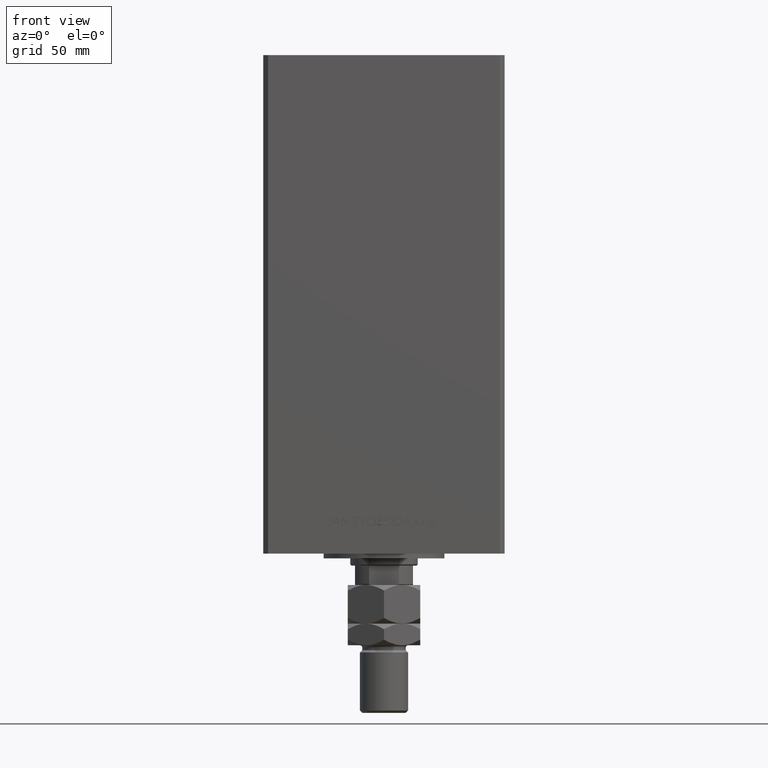
[diagram: clean part render]
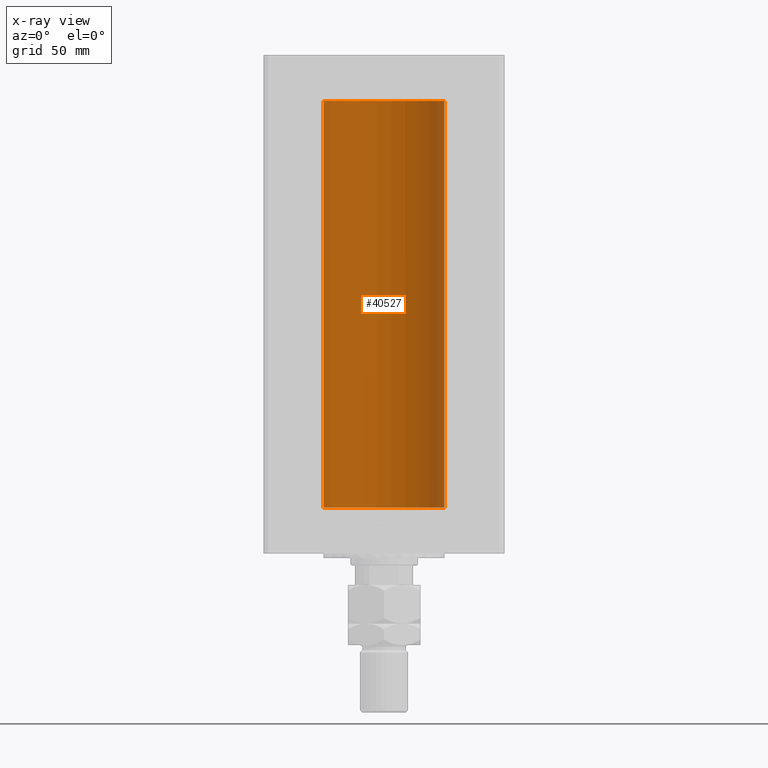
[diagram: x-ray — body ghosted, one internal face saturated and labeled with its STEP entity id]
A machine part, front view, then the same camera in x-ray: the body is ghosted and one INTERNAL B-rep face — a face not visible from any outside direction — is saturated and labeled: STEP entity #40527.
In plain terms, the highlighted cylindrical surface (partial cylindrical patch) has radius 25 mm, axis along (-0, -0, -1).
Its self-contained STEP definition (entity closure, byte-faithful):
#436 = CYLINDRICAL_SURFACE ( 'NONE', #23353, 25.00000000000000000 ) ;
#1452 = CARTESIAN_POINT ( 'NONE',  ( 0.000000000000000000, 0.000000000000000000, 168.5000000000000000 ) ) ;
#1500 = CIRCLE ( 'NONE', #26910, 25.00000000000000000 ) ;
#3869 = DIRECTION ( 'NONE',  ( 1.000000000000000000, 0.000000000000000000, 0.000000000000000000 ) ) ;
#4154 = EDGE_CURVE ( 'NONE', #15265, #5656, #1500, .T. ) ;
#5656 = VERTEX_POINT ( 'NONE', #8709 ) ;
#8709 = CARTESIAN_POINT ( 'NONE',  ( -25.00000000000000000, 0.000000000000000000, 168.5000000000000000 ) ) ;
#12130 = LINE ( 'NONE', #24487, #49358 ) ;
#12344 = LINE ( 'NONE', #42434, #14469 ) ;
#12911 = ORIENTED_EDGE ( 'NONE', *, *, #23631, .F. ) ;
#14469 = VECTOR ( 'NONE', #44711, 1000.000000000000000 ) ;
#15265 = VERTEX_POINT ( 'NONE', #33277 ) ;
#15747 = DIRECTION ( 'NONE',  ( -0.000000000000000000, -0.000000000000000000, -1.000000000000000000 ) ) ;
#17481 = EDGE_CURVE ( 'NONE', #15265, #28022, #12130, .T. ) ;
#19540 = CARTESIAN_POINT ( 'NONE',  ( 0.000000000000000000, 0.000000000000000000, 0.000000000000000000 ) ) ;
#19898 = DIRECTION ( 'NONE',  ( -0.000000000000000000, 0.000000000000000000, 1.000000000000000000 ) ) ;
#20054 = DIRECTION ( 'NONE',  ( -0.000000000000000000, 0.000000000000000000, 1.000000000000000000 ) ) ;
#22851 = CIRCLE ( 'NONE', #24499, 25.00000000000000000 ) ;
#23353 = AXIS2_PLACEMENT_3D ( 'NONE', #1452, #24581, #48183 ) ;
#23631 = EDGE_CURVE ( 'NONE', #28022, #23847, #22851, .T. ) ;
#23847 = VERTEX_POINT ( 'NONE', #30487 ) ;
#24487 = CARTESIAN_POINT ( 'NONE',  ( 25.00000000000000000, 3.061616997868383043E-15, 168.5000000000000000 ) ) ;
#24499 = AXIS2_PLACEMENT_3D ( 'NONE', #19540, #20054, #3869 ) ;
#24581 = DIRECTION ( 'NONE',  ( -0.000000000000000000, -0.000000000000000000, -1.000000000000000000 ) ) ;
#25305 = ORIENTED_EDGE ( 'NONE', *, *, #46237, .T. ) ;
#26910 = AXIS2_PLACEMENT_3D ( 'NONE', #48992, #19898, #47603 ) ;
#27905 = FACE_OUTER_BOUND ( 'NONE', #50059, .T. ) ;
#28022 = VERTEX_POINT ( 'NONE', #33449 ) ;
#30487 = CARTESIAN_POINT ( 'NONE',  ( -25.00000000000000000, 0.000000000000000000, 0.000000000000000000 ) ) ;
#33277 = CARTESIAN_POINT ( 'NONE',  ( 25.00000000000000000, 3.061616997868383043E-15, 168.5000000000000000 ) ) ;
#33449 = CARTESIAN_POINT ( 'NONE',  ( 25.00000000000000000, 3.061616997868383043E-15, 0.000000000000000000 ) ) ;
#38130 = ORIENTED_EDGE ( 'NONE', *, *, #17481, .F. ) ;
#40527 = ADVANCED_FACE ( 'NONE', ( #27905 ), #436, .F. ) ;
#42434 = CARTESIAN_POINT ( 'NONE',  ( -25.00000000000000000, 0.000000000000000000, 168.5000000000000000 ) ) ;
#44711 = DIRECTION ( 'NONE',  ( -0.000000000000000000, -0.000000000000000000, -1.000000000000000000 ) ) ;
#45890 = ORIENTED_EDGE ( 'NONE', *, *, #4154, .T. ) ;
#46237 = EDGE_CURVE ( 'NONE', #5656, #23847, #12344, .T. ) ;
#47603 = DIRECTION ( 'NONE',  ( 1.000000000000000000, 0.000000000000000000, 0.000000000000000000 ) ) ;
#48183 = DIRECTION ( 'NONE',  ( -1.000000000000000000, 0.000000000000000000, 0.000000000000000000 ) ) ;
#48992 = CARTESIAN_POINT ( 'NONE',  ( 0.000000000000000000, 0.000000000000000000, 168.5000000000000000 ) ) ;
#49358 = VECTOR ( 'NONE', #15747, 1000.000000000000000 ) ;
#50059 = EDGE_LOOP ( 'NONE', ( #38130, #45890, #25305, #12911 ) ) ;